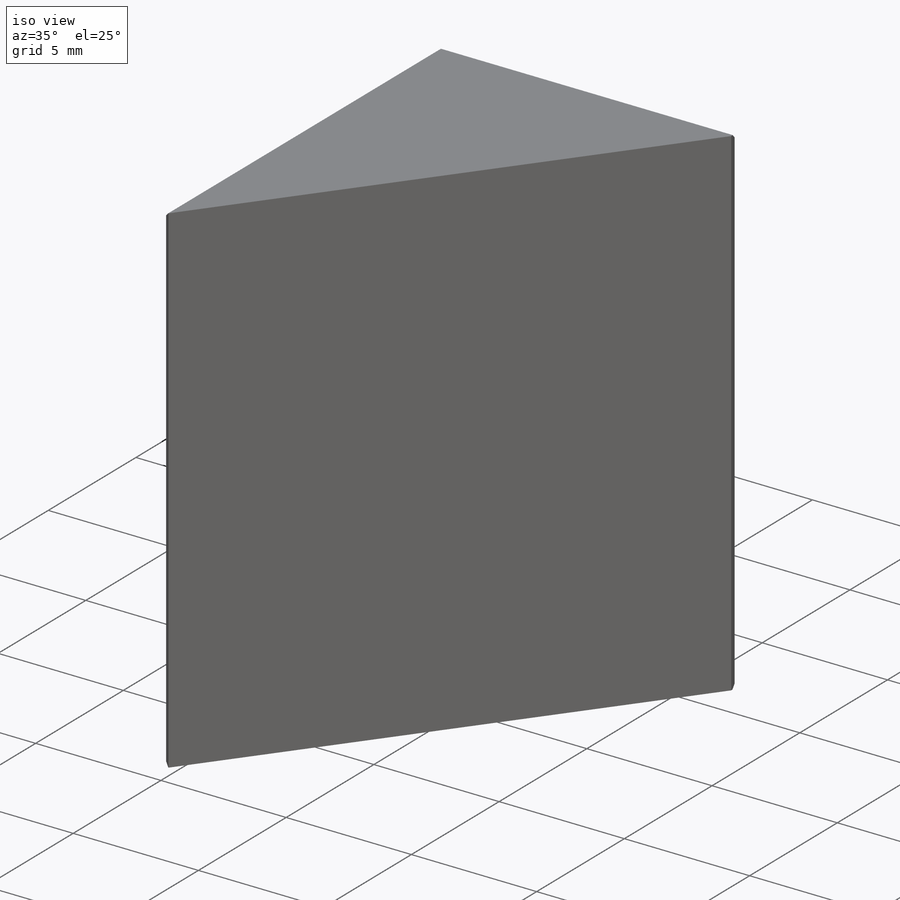
[diagram: iso view]
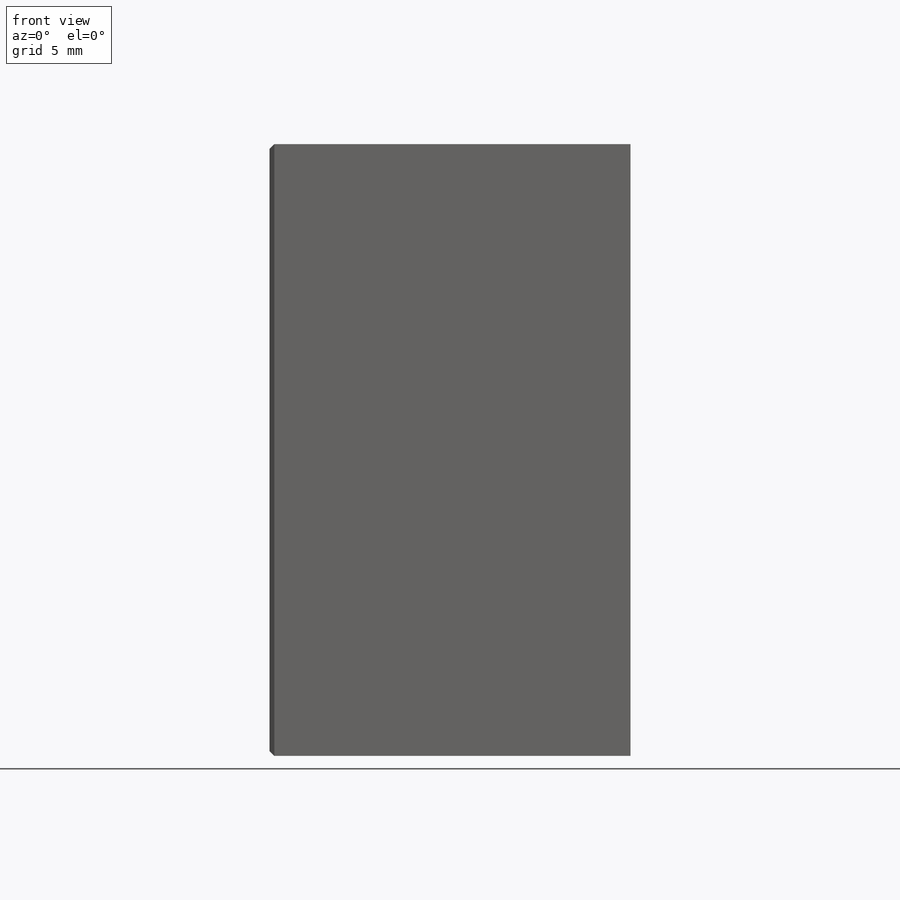
[diagram: front view]
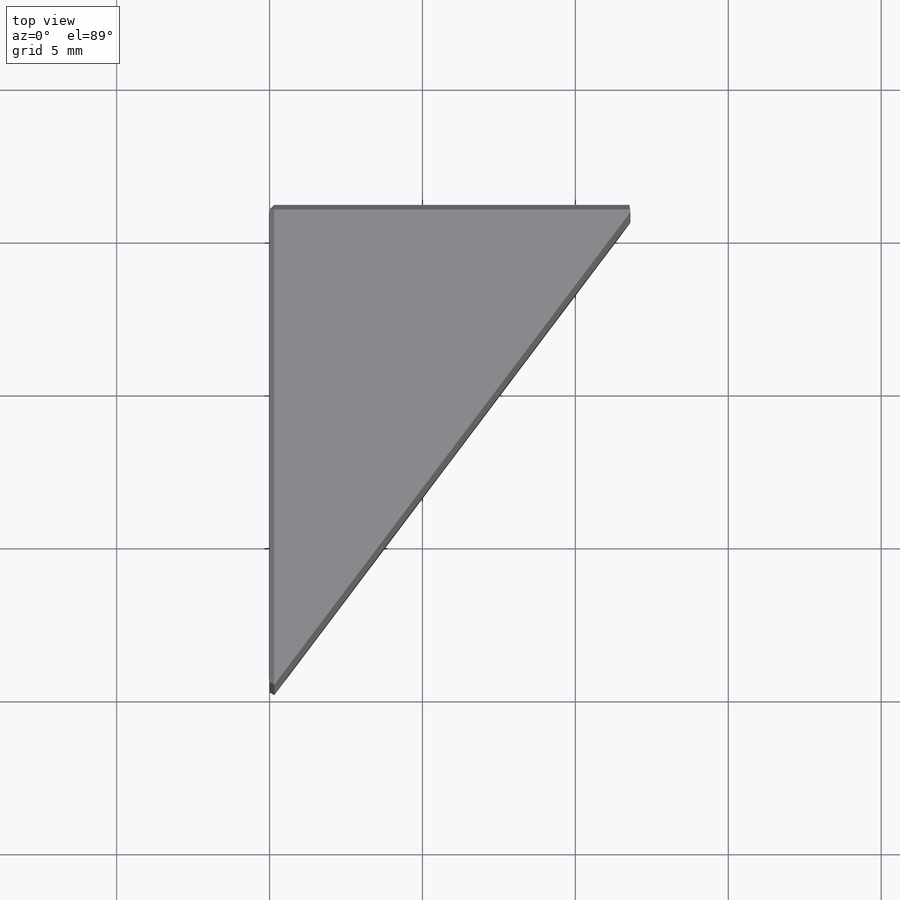
[diagram: top view]
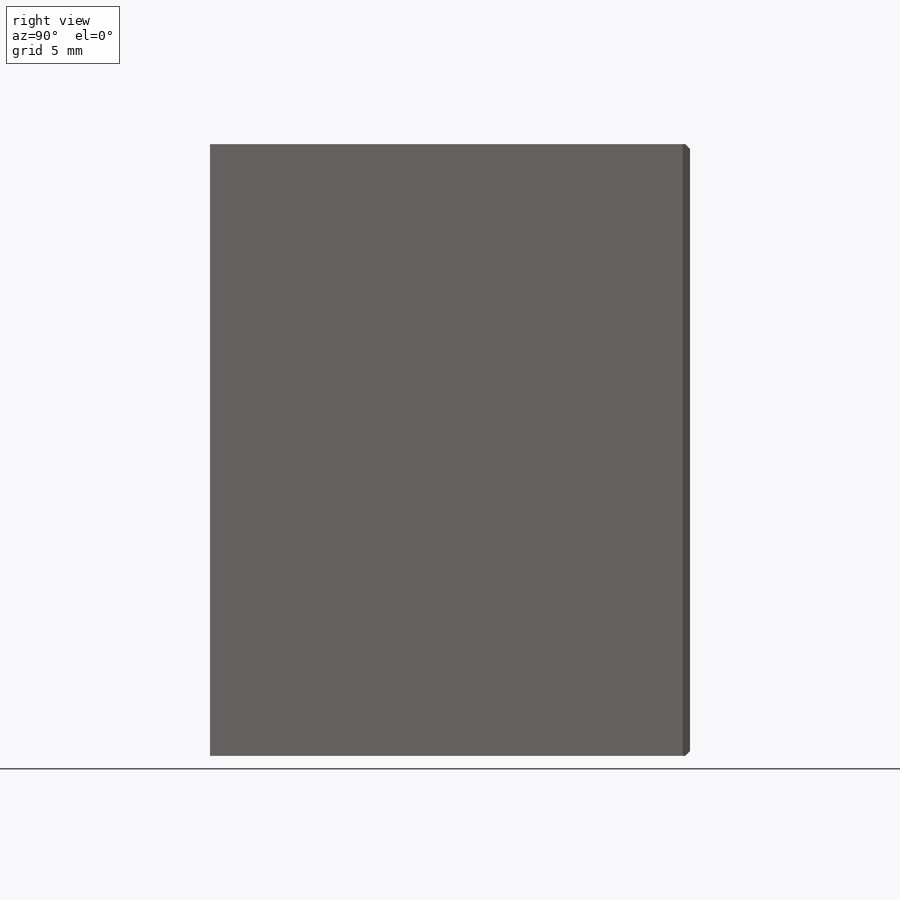
[diagram: right view]
SOLIDWORKS PART (.sldprt)
format: sldprt  version: not decoded by parser v0  size: 147,456 bytes
history: native  units: mm
features: plane x3, extrude x3, chamfer x2, material x1, sketch x1 (+12 scaffold rows collapsed)
feature tree (22):
  scaffold x12  (default folders/planes/origin — collapsed)
  material  "Стекло"
  plane  "Спереди"
  plane  "Сверху"
  plane  "Справа"
  sketch  "Эскиз1"  dims[c1.D1=53.0deg c2.D1=9.57mm c2.D2=53.0deg c3.D2=~19.911331mm c4.D2=53.0deg c4.D3=5.5mm]
  extrude  "Вытянуть1"  Depth=20mm
  chamfer  "Фаска1"  Distance=0.3mm Angle=60deg
  extrude  "Фаска2"  Depth=0.3mm
  extrude  "Фаска3"  Depth=0.15mm Material_Int=0mm Material_Ext=0mm Surface=0mm
  chamfer  "OptisFaceAttribut_1"  Distance=0mm Surface=0mm Material_Int=0mm Material_Ext=0mm
decode coverage: 6 of 6 modeling features carry decoded parameters
note: ~ marks probable driven/reference dimensions
note: suppression state not decoded; provenance and decode notes live in map.json
